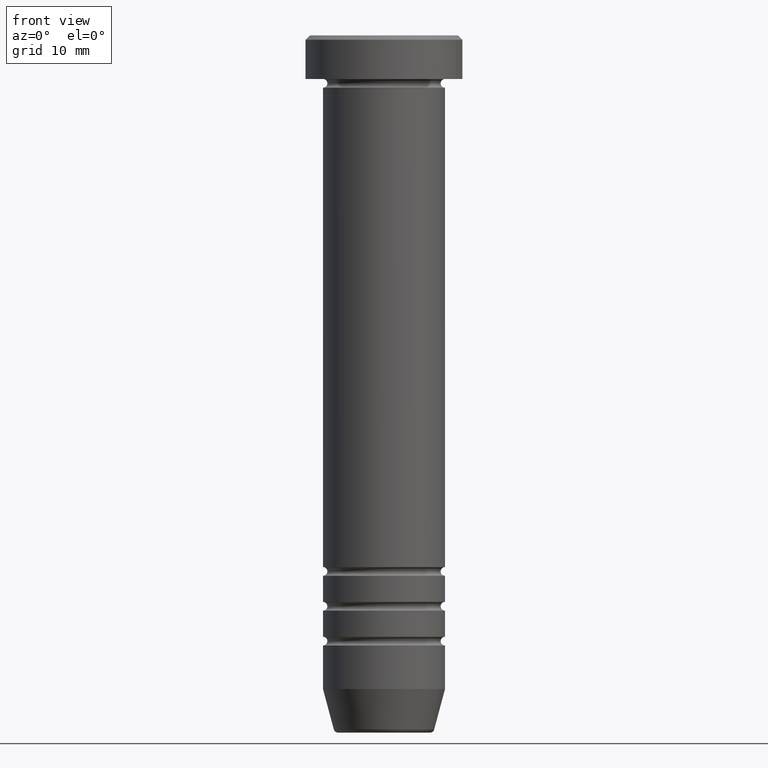
[diagram: clean part render]
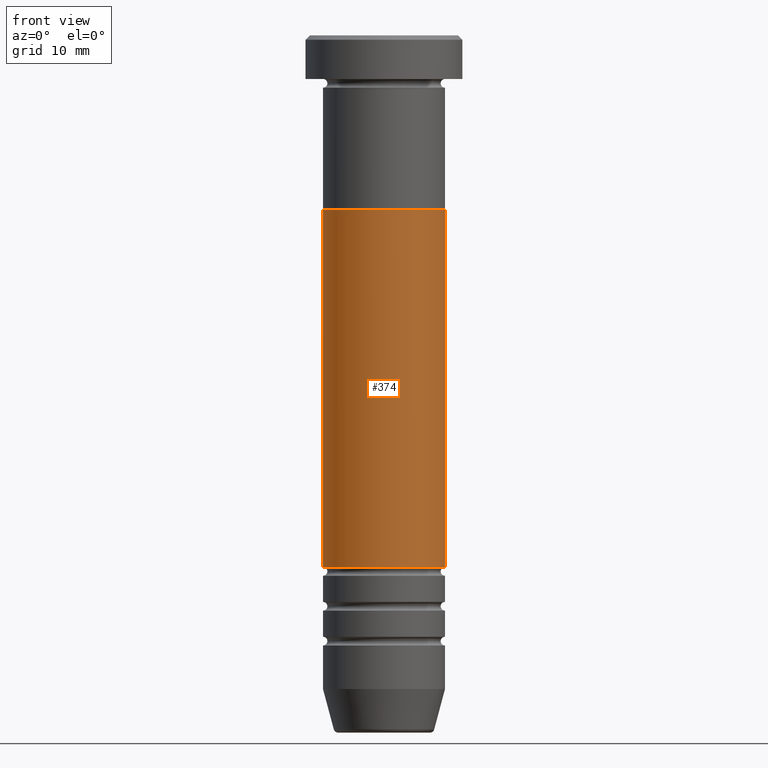
[diagram: same view with one face highlighted and labeled with its STEP entity id]
A machine part, front view. The second image highlights one B-rep face of the part: STEP entity #374.
In plain terms, the highlighted cylindrical surface (partial cylindrical patch) has radius 7 mm, axis along (-0, -0, 1).
Its self-contained STEP definition (entity closure, byte-faithful):
#13 = VECTOR ( 'NONE', #689, 1000.000000000000000 ) ;
#16 = DIRECTION ( 'NONE',  ( 1.000000000000000000, 0.000000000000000000, 0.000000000000000000 ) ) ;
#31 = DIRECTION ( 'NONE',  ( -0.000000000000000000, -0.000000000000000000, 1.000000000000000000 ) ) ;
#58 = VECTOR ( 'NONE', #31, 1000.000000000000000 ) ;
#106 = EDGE_CURVE ( 'NONE', #153, #316, #752, .T. ) ;
#116 = ORIENTED_EDGE ( 'NONE', *, *, #578, .F. ) ;
#119 = EDGE_CURVE ( 'NONE', #153, #391, #657, .T. ) ;
#153 = VERTEX_POINT ( 'NONE', #441 ) ;
#195 = CARTESIAN_POINT ( 'NONE',  ( -6.999999999999996447, 8.572527594031468259E-16, 0.000000000000000000 ) ) ;
#268 = AXIS2_PLACEMENT_3D ( 'NONE', #873, #315, #382 ) ;
#274 = CARTESIAN_POINT ( 'NONE',  ( 0.000000000000000000, 0.000000000000000000, -60.99999999999999289 ) ) ;
#304 = CIRCLE ( 'NONE', #830, 7.000000000000000000 ) ;
#315 = DIRECTION ( 'NONE',  ( -0.000000000000000000, -0.000000000000000000, 1.000000000000000000 ) ) ;
#316 = VERTEX_POINT ( 'NONE', #1048 ) ;
#351 = DIRECTION ( 'NONE',  ( -0.000000000000000000, -0.000000000000000000, 1.000000000000000000 ) ) ;
#374 = ADVANCED_FACE ( 'NONE', ( #541 ), #883, .T. ) ;
#382 = DIRECTION ( 'NONE',  ( 1.000000000000000000, 0.000000000000000000, 0.000000000000000000 ) ) ;
#383 = ORIENTED_EDGE ( 'NONE', *, *, #119, .T. ) ;
#391 = VERTEX_POINT ( 'NONE', #802 ) ;
#413 = CARTESIAN_POINT ( 'NONE',  ( 7.000000000000000000, 0.000000000000000000, -20.00000000000000000 ) ) ;
#441 = CARTESIAN_POINT ( 'NONE',  ( -6.999999999999992895, 8.572527594031466287E-16, -60.99999999999999289 ) ) ;
#514 = LINE ( 'NONE', #594, #13 ) ;
#541 = FACE_OUTER_BOUND ( 'NONE', #756, .T. ) ;
#578 = EDGE_CURVE ( 'NONE', #316, #707, #304, .T. ) ;
#593 = CARTESIAN_POINT ( 'NONE',  ( 0.000000000000000000, 0.000000000000000000, -20.00000000000000000 ) ) ;
#594 = CARTESIAN_POINT ( 'NONE',  ( 6.999999999999996447, 0.000000000000000000, 0.000000000000000000 ) ) ;
#657 = CIRCLE ( 'NONE', #866, 6.999999999999992895 ) ;
#689 = DIRECTION ( 'NONE',  ( -0.000000000000000000, -0.000000000000000000, 1.000000000000000000 ) ) ;
#704 = DIRECTION ( 'NONE',  ( 1.000000000000000000, 0.000000000000000000, 0.000000000000000000 ) ) ;
#707 = VERTEX_POINT ( 'NONE', #413 ) ;
#752 = LINE ( 'NONE', #195, #58 ) ;
#756 = EDGE_LOOP ( 'NONE', ( #916, #383, #892, #116 ) ) ;
#802 = CARTESIAN_POINT ( 'NONE',  ( 6.999999999999992895, 0.000000000000000000, -60.99999999999999289 ) ) ;
#826 = DIRECTION ( 'NONE',  ( -0.000000000000000000, -0.000000000000000000, 1.000000000000000000 ) ) ;
#830 = AXIS2_PLACEMENT_3D ( 'NONE', #593, #826, #16 ) ;
#866 = AXIS2_PLACEMENT_3D ( 'NONE', #274, #351, #704 ) ;
#873 = CARTESIAN_POINT ( 'NONE',  ( 0.000000000000000000, 0.000000000000000000, 0.000000000000000000 ) ) ;
#883 = CYLINDRICAL_SURFACE ( 'NONE', #268, 6.999999999999996447 ) ;
#892 = ORIENTED_EDGE ( 'NONE', *, *, #894, .T. ) ;
#894 = EDGE_CURVE ( 'NONE', #391, #707, #514, .T. ) ;
#916 = ORIENTED_EDGE ( 'NONE', *, *, #106, .F. ) ;
#1048 = CARTESIAN_POINT ( 'NONE',  ( -7.000000000000000000, 8.572527594031472204E-16, -20.00000000000000000 ) ) ;